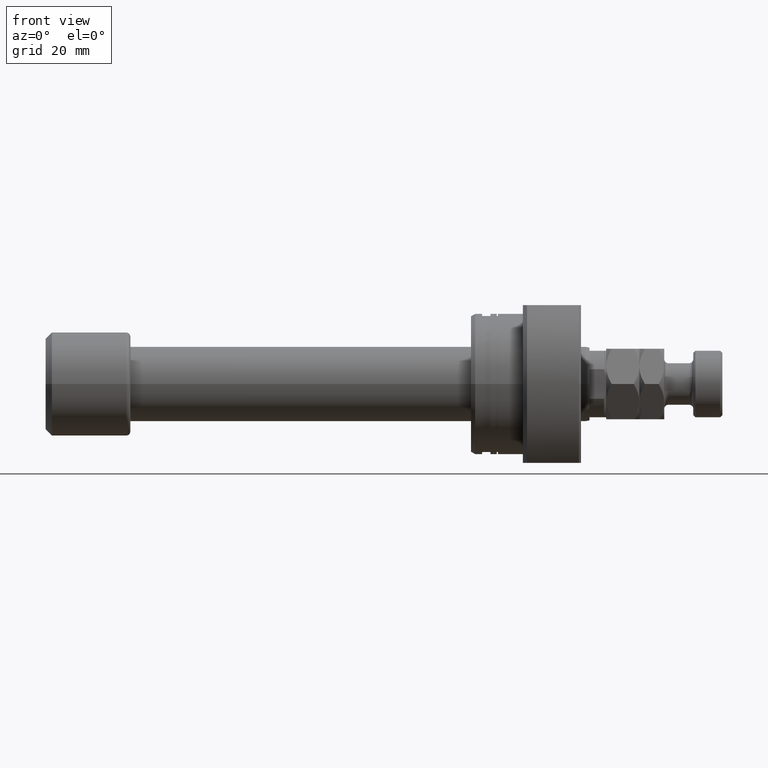
[diagram: clean part render]
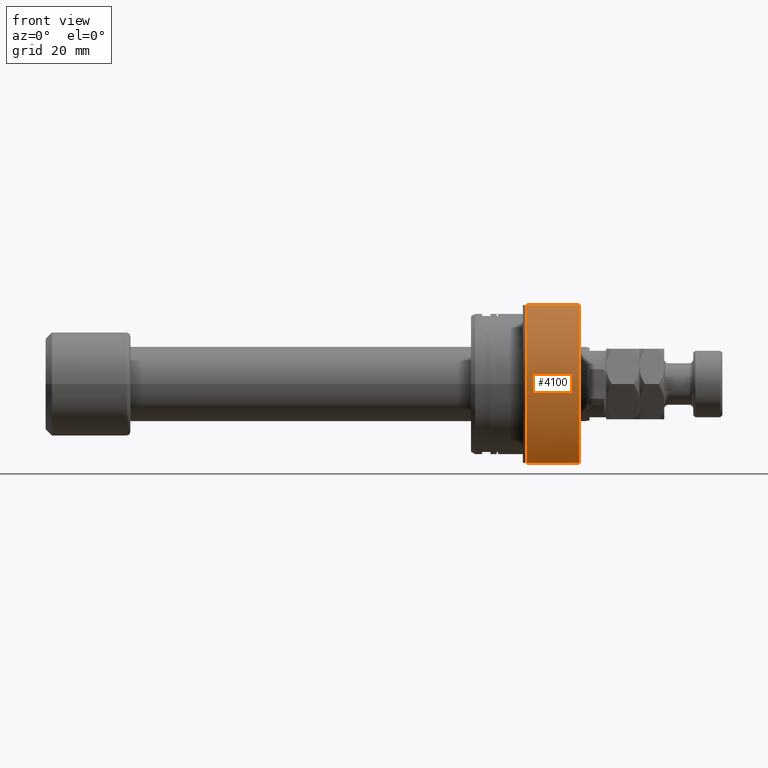
[diagram: same view with one face highlighted and labeled with its STEP entity id]
A machine part, front view. The second image highlights one B-rep face of the part: STEP entity #4100.
In plain terms, the highlighted cylindrical surface (partial cylindrical patch) has radius 27.5 mm, axis along (1, 0, 0).
Its self-contained STEP definition (entity closure, byte-faithful):
#140 = VERTEX_POINT ( 'NONE', #2378 ) ;
#149 = EDGE_CURVE ( 'NONE', #840, #1875, #2055, .T. ) ;
#230 = DIRECTION ( 'NONE',  ( 1.000000000000000000, 9.242617352055502386E-18, -0.000000000000000000 ) ) ;
#256 = CARTESIAN_POINT ( 'NONE',  ( 26.00000000000007461, -19.88089535207091885, 19.00000000000001421 ) ) ;
#289 = EDGE_LOOP ( 'NONE', ( #2742, #2789, #2482, #3579, #1559 ) ) ;
#425 = DIRECTION ( 'NONE',  ( 1.000000000000000000, 9.242617352055502386E-18, -0.000000000000000000 ) ) ;
#490 = VECTOR ( 'NONE', #712, 1000.000000000000000 ) ;
#569 = DIRECTION ( 'NONE',  ( 0.000000000000000000, 1.000000000000000000, 0.000000000000000000 ) ) ;
#712 = DIRECTION ( 'NONE',  ( 1.000000000000000000, -2.886466111666351885E-14, -0.000000000000000000 ) ) ;
#840 = VERTEX_POINT ( 'NONE', #2394 ) ;
#917 = DIRECTION ( 'NONE',  ( 0.000000000000000000, 1.000000000000000000, 0.000000000000000000 ) ) ;
#954 = CARTESIAN_POINT ( 'NONE',  ( 13.49999999999998757, -19.88089535207056358, -19.00000000000001066 ) ) ;
#991 = AXIS2_PLACEMENT_3D ( 'NONE', #4508, #425, #2316 ) ;
#1104 = CARTESIAN_POINT ( 'NONE',  ( -1.360023205165816762E-12, -19.88089535207016922, 19.00000000000001421 ) ) ;
#1163 = VECTOR ( 'NONE', #3232, 1000.000000000000000 ) ;
#1237 = CIRCLE ( 'NONE', #3448, 27.49999999999991473 ) ;
#1321 = VERTEX_POINT ( 'NONE', #4123 ) ;
#1426 = LINE ( 'NONE', #1104, #490 ) ;
#1559 = ORIENTED_EDGE ( 'NONE', *, *, #3114, .F. ) ;
#1673 = DIRECTION ( 'NONE',  ( 1.000000000000000000, 9.242617352055502386E-18, -0.000000000000000000 ) ) ;
#1875 = VERTEX_POINT ( 'NONE', #954 ) ;
#2005 = DIRECTION ( 'NONE',  ( 1.000000000000000000, 9.242617352055502386E-18, -0.000000000000000000 ) ) ;
#2031 = EDGE_CURVE ( 'NONE', #840, #2352, #1426, .T. ) ;
#2055 = CIRCLE ( 'NONE', #2218, 27.49999999999991473 ) ;
#2071 = FACE_OUTER_BOUND ( 'NONE', #289, .T. ) ;
#2218 = AXIS2_PLACEMENT_3D ( 'NONE', #3859, #2005, #917 ) ;
#2316 = DIRECTION ( 'NONE',  ( 0.000000000000000000, 1.000000000000000000, 0.000000000000000000 ) ) ;
#2352 = VERTEX_POINT ( 'NONE', #256 ) ;
#2378 = CARTESIAN_POINT ( 'NONE',  ( 26.00000000000008882, -27.49999999999991473, 0.000000000000000000 ) ) ;
#2394 = CARTESIAN_POINT ( 'NONE',  ( 13.49999999999998757, -19.88089535207056002, 19.00000000000001421 ) ) ;
#2421 = CARTESIAN_POINT ( 'NONE',  ( 26.00000000000008882, 2.403080511534438786E-16, 0.000000000000000000 ) ) ;
#2482 = ORIENTED_EDGE ( 'NONE', *, *, #4739, .T. ) ;
#2742 = ORIENTED_EDGE ( 'NONE', *, *, #2031, .F. ) ;
#2789 = ORIENTED_EDGE ( 'NONE', *, *, #149, .T. ) ;
#2896 = AXIS2_PLACEMENT_3D ( 'NONE', #4307, #230, #569 ) ;
#3114 = EDGE_CURVE ( 'NONE', #2352, #140, #3662, .T. ) ;
#3180 = DIRECTION ( 'NONE',  ( 0.000000000000000000, 1.000000000000000000, 0.000000000000000000 ) ) ;
#3232 = DIRECTION ( 'NONE',  ( 1.000000000000000000, -2.886466111666351885E-14, -0.000000000000000000 ) ) ;
#3448 = AXIS2_PLACEMENT_3D ( 'NONE', #2421, #1673, #3180 ) ;
#3539 = CYLINDRICAL_SURFACE ( 'NONE', #2896, 27.49999999999991473 ) ;
#3579 = ORIENTED_EDGE ( 'NONE', *, *, #4774, .F. ) ;
#3662 = CIRCLE ( 'NONE', #991, 27.49999999999991473 ) ;
#3859 = CARTESIAN_POINT ( 'NONE',  ( 13.49999999999999112, 1.247753342527491952E-16, 0.000000000000000000 ) ) ;
#4005 = LINE ( 'NONE', #4343, #1163 ) ;
#4100 = ADVANCED_FACE ( 'NONE', ( #2071 ), #3539, .T. ) ;
#4123 = CARTESIAN_POINT ( 'NONE',  ( 26.00000000000007461, -19.88089535207092240, -19.00000000000001066 ) ) ;
#4307 = CARTESIAN_POINT ( 'NONE',  ( 26.50000000000000711, 2.449293598294708880E-16, 0.000000000000000000 ) ) ;
#4343 = CARTESIAN_POINT ( 'NONE',  ( -1.360023205165816762E-12, -19.88089535207017278, -19.00000000000001066 ) ) ;
#4508 = CARTESIAN_POINT ( 'NONE',  ( 26.00000000000008882, 2.403080511534438786E-16, 0.000000000000000000 ) ) ;
#4739 = EDGE_CURVE ( 'NONE', #1875, #1321, #4005, .T. ) ;
#4774 = EDGE_CURVE ( 'NONE', #140, #1321, #1237, .T. ) ;